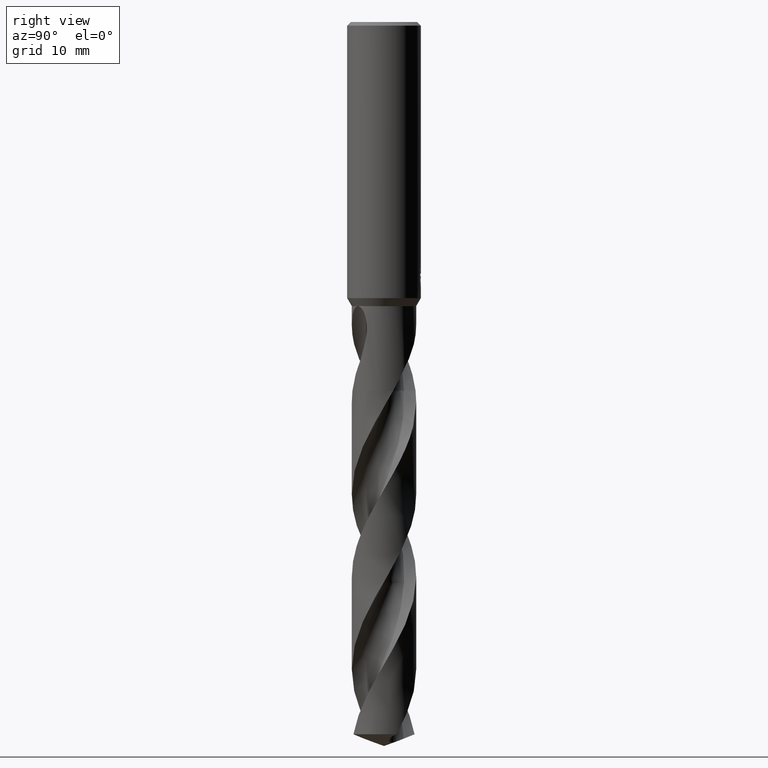
[diagram: clean part render]
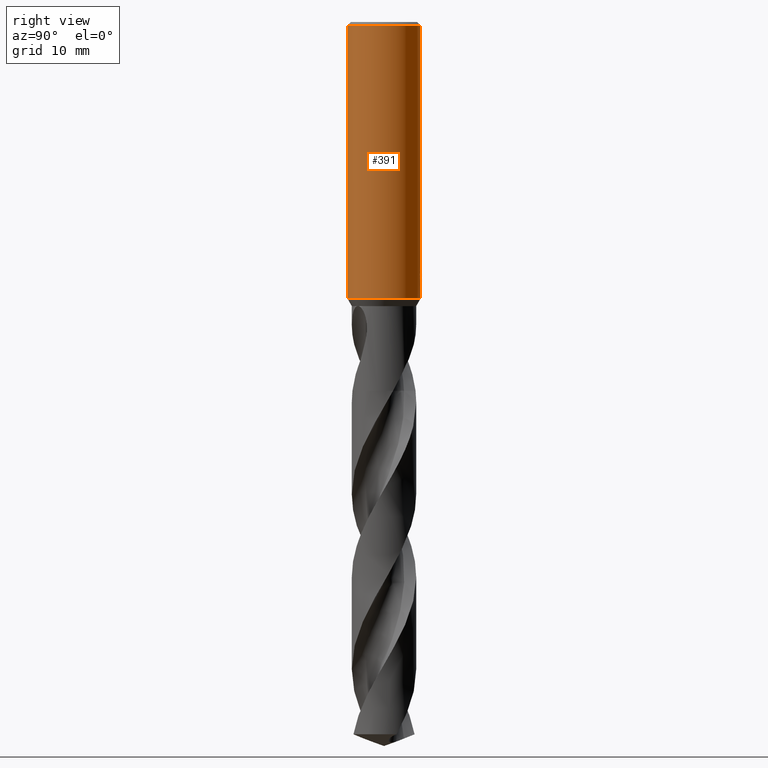
[diagram: same view with one face highlighted and labeled with its STEP entity id]
A machine part, right view. The second image highlights one B-rep face of the part: STEP entity #391.
In plain terms, the highlighted cylindrical surface (partial cylindrical patch) has radius 6 mm, axis along (-0, -0, 1).
Its self-contained STEP definition (entity closure, byte-faithful):
#361=VERTEX_POINT('',#923);
#371=VERTEX_POINT('',#934);
#391=ADVANCED_FACE('',(#956),#957,.T.);
#407=VERTEX_POINT('',#975);
#465=EDGE_CURVE('',#669,#747,#1038,.T.);
#481=EDGE_CURVE('',#763,#361,#1054,.T.);
#551=EDGE_CURVE('',#407,#361,#1132,.T.);
#587=VERTEX_POINT('',#1170);
#621=VERTEX_POINT('',#1206);
#643=EDGE_CURVE('',#687,#669,#1230,.T.);
#647=VERTEX_POINT('',#1234);
#657=VERTEX_POINT('',#1245);
#661=EDGE_CURVE('',#687,#823,#1249,.T.);
#669=VERTEX_POINT('',#1258);
#685=EDGE_CURVE('',#371,#621,#1275,.T.);
#687=VERTEX_POINT('',#1277);
#697=EDGE_CURVE('',#587,#657,#1288,.T.);
#707=EDGE_CURVE('',#763,#621,#1300,.T.);
#723=EDGE_CURVE('',#823,#371,#1318,.T.);
#747=VERTEX_POINT('',#1343);
#763=VERTEX_POINT('',#1360);
#765=EDGE_CURVE('',#647,#407,#1362,.T.);
#807=EDGE_CURVE('',#747,#587,#1410,.T.);
#823=VERTEX_POINT('',#1426);
#825=EDGE_CURVE('',#657,#647,#1428,.T.);
#923=CARTESIAN_POINT('',(4.30282158127811E-015,6.0,-41.0232688117743));
#934=CARTESIAN_POINT('',(7.34763812293426E-016,-6.0,-45.0));
#956=FACE_OUTER_BOUND('',#2894,.T.);
#957=CYLINDRICAL_SURFACE('',#2895,6.0);
#975=CARTESIAN_POINT('',(0.799431726384364,5.94650392372275,-40.000000276873));
#1038=ELLIPSE('',#4202,18.2879674402186,6.0);
#1054=LINE('',#4247,#4248);
#1132=B_SPLINE_CURVE_WITH_KNOTS('',3,(#5929,#5930,#5931,#5932,#5933,#5934,#5935,#5936,#5937,#5938,#5939,#5940,#5941,#5942,#5943,#5944,#5945,#5946,#5947,#5948,#5949,#5950,#5951,#5952,#5953,#5954,#5955),.UNSPECIFIED.,.F.,.F.,(4,2,3,2,2,2,2,2,2,2,2,2,4),(-0.542204134993822,-0.271102067496911,0.0,0.271102067496911,0.542204134993821,0.813702489471782,1.08520084394974,1.35603748887758,1.62687413380543,1.89790609484719,2.16893805588896,2.43997001693073,2.71100197797249),.UNSPECIFIED.);
#1170=CARTESIAN_POINT('',(0.873560781758956,5.93606701112552,-42.7587351791531));
#1206=CARTESIAN_POINT('',(7.34763812293426E-016,-6.0,-0.600000000000001));
#1230=B_SPLINE_CURVE_WITH_KNOTS('',3,(#6461,#6462,#6463,#6464,#6465,#6466,#6467,#6468,#6469,#6470,#6471,#6472,#6473,#6474,#6475,#6476),.UNSPECIFIED.,.F.,.F.,(4,2,2,2,2,2,2,4),(5.86022917063912,6.16870405720903,6.47725847293827,6.78581288866751,7.09436730439676,7.402921720126,7.71116114554584,8.01940057096568),.UNSPECIFIED.);
#1234=CARTESIAN_POINT('',(1.33721006514658,5.84909131760402,-40.5150484364821));
#1245=CARTESIAN_POINT('',(1.33721006514658,5.84909131760402,-42.2901657003257));
#1249=LINE('',#6584,#6585);
#1258=CARTESIAN_POINT('',(0.29010312703583,5.99298257762227,-42.9998328990228));
#1275=LINE('',#6722,#6723);
#1277=CARTESIAN_POINT('',(-1.000126236349E-015,6.0,-43.0310253601033));
#1288=B_SPLINE_CURVE_WITH_KNOTS('',3,(#6737,#6738,#6739,#6740,#6741,#6742,#6743,#6744,#6745,#6746),.UNSPECIFIED.,.F.,.F.,(4,2,2,2,4),(8.01939987363182,8.32763927191416,8.6358786701965,8.94431104401671,9.25274341783691),.UNSPECIFIED.);
#1300=CIRCLE('',#7396,6.0);
#1318=CIRCLE('',#7662,6.0);
#1343=CARTESIAN_POINT('',(0.873560781758957,5.93606701112552,-41.3198931596091));
#1360=CARTESIAN_POINT('',(0.0,6.0,-0.600000000000001));
#1362=B_SPLINE_CURVE_WITH_KNOTS('',3,(#7780,#7781,#7782,#7783,#7784,#7785,#7786,#7787,#7788,#7789),.UNSPECIFIED.,.F.,.F.,(4,2,2,2,4),(0.616864768993534,0.925297153490302,1.23372953798707,1.54196894672892,1.85020835547076),.UNSPECIFIED.);
#1410=LINE('',#9152,#9153);
#1426=CARTESIAN_POINT('',(0.0,6.0,-45.0));
#1428=LINE('',#9236,#9237);
#2894=EDGE_LOOP('',(#9370,#9371,#9372,#9373,#9374,#9375,#9376,#9377,#9378,#9379,#9380,#9381));
#2895=AXIS2_PLACEMENT_3D('',#9382,#9383,#9384);
#4202=AXIS2_PLACEMENT_3D('',#9476,#9477,#9478);
#4247=CARTESIAN_POINT('',(-7.34763812293426E-016,6.0,-22.8));
#4248=VECTOR('',#9486,1.0);
#5929=CARTESIAN_POINT('',(0.665038279511986,5.96302977409838,-39.8135117776465));
#5930=CARTESIAN_POINT('',(0.728716101835783,5.95592798339707,-39.8772374280006));
#5931=CARTESIAN_POINT('',(0.783974665019777,5.94867668154847,-39.9579557273851));
#5932=CARTESIAN_POINT('',(0.857320507570535,5.93854966257537,-40.1349694534753));
#5933=CARTESIAN_POINT('',(0.875400981188567,5.93579591311343,-40.2312746567545));
#5934=CARTESIAN_POINT('',(0.875400981188567,5.93579591311343,-40.3216420125868));
#5935=CARTESIAN_POINT('',(0.875400981188567,5.93579591311343,-40.4120093684191));
#5936=CARTESIAN_POINT('',(0.857320507570535,5.93854966257537,-40.5083145716983));
#5937=CARTESIAN_POINT('',(0.783974665019777,5.94867668154847,-40.6853282977885));
#5938=CARTESIAN_POINT('',(0.728716101835784,5.95592798339707,-40.766046597173));
#5939=CARTESIAN_POINT('',(0.601267375301349,5.97014194593481,-40.8935910496813));
#5940=CARTESIAN_POINT('',(0.52050089626908,5.97804010501944,-40.9489349030958));
#5941=CARTESIAN_POINT('',(0.343370231624616,5.99082478161003,-41.0224010244896));
#5942=CARTESIAN_POINT('',(0.246995041657254,5.9955970178221,-41.0405166027747));
#5943=CARTESIAN_POINT('',(0.066278235124748,6.00031311449822,-41.0405166027747));
#5944=CARTESIAN_POINT('',(-0.0299950498794653,6.00057849353559,-41.0224799292738));
#5945=CARTESIAN_POINT('',(-0.207070170783241,5.99707961466003,-40.949146253936));
#5946=CARTESIAN_POINT('',(-0.287875322309355,5.99343072940708,-40.8938517989794));
#5947=CARTESIAN_POINT('',(-0.415515670858363,5.98593657913032,-40.7662728045656));
#5948=CARTESIAN_POINT('',(-0.470860335647626,5.98160913098325,-40.6854535363062));
#5949=CARTESIAN_POINT('',(-0.544278095376138,5.97537602271911,-40.5083128294691));
#5950=CARTESIAN_POINT('',(-0.562348199187247,5.97358891311336,-40.4119859996007));
#5951=CARTESIAN_POINT('',(-0.562348199187247,5.97358891311336,-40.2312980255729));
#5952=CARTESIAN_POINT('',(-0.544278095376141,5.97537602271911,-40.1349711957045));
#5953=CARTESIAN_POINT('',(-0.470860335647634,5.98160913098325,-39.9578304888674));
#5954=CARTESIAN_POINT('',(-0.415515670858364,5.98593657913032,-39.8770112206079));
#5955=CARTESIAN_POINT('',(-0.351672492652108,5.98968500489899,-39.8131987305268));
#6461=CARTESIAN_POINT('',(-1.37942962388976,5.83927854385585,-42.3120938518854));
#6462=CARTESIAN_POINT('',(-1.3197524098915,5.85337626434356,-42.4007460556891));
#6463=CARTESIAN_POINT('',(-1.25213007147997,5.86835238153676,-42.4821006164436));
#6464=CARTESIAN_POINT('',(-1.10815476297052,5.89723538536299,-42.6261133873133));
#6465=CARTESIAN_POINT('',(-1.02679168998259,5.91217036370492,-42.6937759496578));
#6466=CARTESIAN_POINT('',(-0.849449577088966,5.94024368186983,-42.8132077327803));
#6467=CARTESIAN_POINT('',(-0.75347222810614,5.95335623661259,-42.8649855238005));
#6468=CARTESIAN_POINT('',(-0.552969605024409,5.97531551411668,-42.9482857310807));
#6469=CARTESIAN_POINT('',(-0.448275455975639,5.98416266823847,-42.9798740542996));
#6470=CARTESIAN_POINT('',(-0.237398161173605,5.99623180317797,-43.0213727490831));
#6471=CARTESIAN_POINT('',(-0.131212492151728,5.9994467834274,-43.0312723335086));
#6472=CARTESIAN_POINT('',(0.0743831578630581,6.00041865072596,-43.0312723335086));
#6473=CARTESIAN_POINT('',(0.180490238104753,5.99821260764714,-43.021392590677));
#6474=CARTESIAN_POINT('',(0.391259717323761,5.98815890288379,-42.9799476485545));
#6475=CARTESIAN_POINT('',(0.495924498667214,5.98031828233743,-42.948392857806));
#6476=CARTESIAN_POINT('',(0.596162626581452,5.9703090475006,-42.9067743263419));
#6584=CARTESIAN_POINT('',(-7.34763812293426E-016,6.0,-22.8));
#6585=VECTOR('',#9658,1.0);
#6722=CARTESIAN_POINT('',(7.34763812293426E-016,-6.0,-22.8));
#6723=VECTOR('',#9675,1.0);
#6737=CARTESIAN_POINT('',(0.596162353925366,5.97030907472655,-42.9067738917094));
#6738=CARTESIAN_POINT('',(0.696400473442532,5.96029984535159,-42.865155363849));
#6739=CARTESIAN_POINT('',(0.792381491214139,5.94812316388512,-42.8134067156396));
#6740=CARTESIAN_POINT('',(0.969743099309515,5.92179330285852,-42.6940254716034));
#6741=CARTESIAN_POINT('',(1.05112184544356,5.90766592947307,-42.6263844458399));
#6742=CARTESIAN_POINT('',(1.19518872950838,5.8802129638209,-42.4823537072831));
#6743=CARTESIAN_POINT('',(1.26287133655555,5.86591039902768,-42.4009544008203));
#6744=CARTESIAN_POINT('',(1.38231447417469,5.83891732404075,-42.2235653885997));
#6745=CARTESIAN_POINT('',(1.43408414037219,5.82625505882607,-42.1275775374671));
#6746=CARTESIAN_POINT('',(1.47572255119055,5.81568937890493,-42.0273283801715));
#7396=AXIS2_PLACEMENT_3D('',#9699,#9700,#9701);
#7662=AXIS2_PLACEMENT_3D('',#9720,#9721,#9722);
#7780=CARTESIAN_POINT('',(1.47572255922527,5.81568937686614,-40.7778857706544));
#7781=CARTESIAN_POINT('',(1.43408414695966,5.82625505721574,-40.6776366099009));
#7782=CARTESIAN_POINT('',(1.38231447896357,5.83891732292942,-40.5816487554591));
#7783=CARTESIAN_POINT('',(1.26287133719122,5.86591039891312,-40.404259737123));
#7784=CARTESIAN_POINT('',(1.19518872778899,5.88021296420216,-40.3228604278537));
#7785=CARTESIAN_POINT('',(1.05112183874896,5.90766593069519,-40.1788296843787));
#7786=CARTESIAN_POINT('',(0.969743089830991,5.92179330445672,-40.111188656323));
#7787=CARTESIAN_POINT('',(0.792381475667972,5.94812316600191,-39.9918074082397));
#7788=CARTESIAN_POINT('',(0.696400454612605,5.96029984760923,-39.9400587582751));
#7789=CARTESIAN_POINT('',(0.596162331669374,5.97030907694891,-39.8984402290046));
#9152=CARTESIAN_POINT('',(0.873560781758957,5.93606701112552,-42.0393141693811));
#9153=VECTOR('',#9808,1.0);
#9236=CARTESIAN_POINT('',(1.33721006514658,5.84909131760402,-41.4026070684039));
#9237=VECTOR('',#9815,1.0);
#9370=ORIENTED_EDGE('',*,*,#481,.F.);
#9371=ORIENTED_EDGE('',*,*,#707,.T.);
#9372=ORIENTED_EDGE('',*,*,#685,.F.);
#9373=ORIENTED_EDGE('',*,*,#723,.F.);
#9374=ORIENTED_EDGE('',*,*,#661,.F.);
#9375=ORIENTED_EDGE('',*,*,#643,.T.);
#9376=ORIENTED_EDGE('',*,*,#465,.T.);
#9377=ORIENTED_EDGE('',*,*,#807,.T.);
#9378=ORIENTED_EDGE('',*,*,#697,.T.);
#9379=ORIENTED_EDGE('',*,*,#825,.T.);
#9380=ORIENTED_EDGE('',*,*,#765,.T.);
#9381=ORIENTED_EDGE('',*,*,#551,.T.);
#9382=CARTESIAN_POINT('',(0.0,0.0,-22.8));
#9383=DIRECTION('',(-0.0,-0.0,1.0));
#9384=DIRECTION('',(0.0,1.0,0.0));
#9476=CARTESIAN_POINT('',(0.0,0.0,-43.8351219173269));
#9477=DIRECTION('',(0.944648353914092,0.0,-0.328084573619969));
#9478=DIRECTION('',(0.328084573619969,-0.0,0.944648353914092));
#9486=DIRECTION('',(0.0,0.0,-1.0));
#9658=DIRECTION('',(0.0,0.0,-1.0));
#9675=DIRECTION('',(-0.0,-0.0,1.0));
#9699=CARTESIAN_POINT('',(0.0,0.0,-0.600000000000001));
#9700=DIRECTION('',(0.0,0.0,-1.0));
#9701=DIRECTION('',(0.0,1.0,0.0));
#9720=CARTESIAN_POINT('',(0.0,0.0,-45.0));
#9721=DIRECTION('',(0.0,0.0,-1.0));
#9722=DIRECTION('',(0.0,1.0,0.0));
#9808=DIRECTION('',(0.0,0.0,-1.0));
#9815=DIRECTION('',(-0.0,-0.0,1.0));